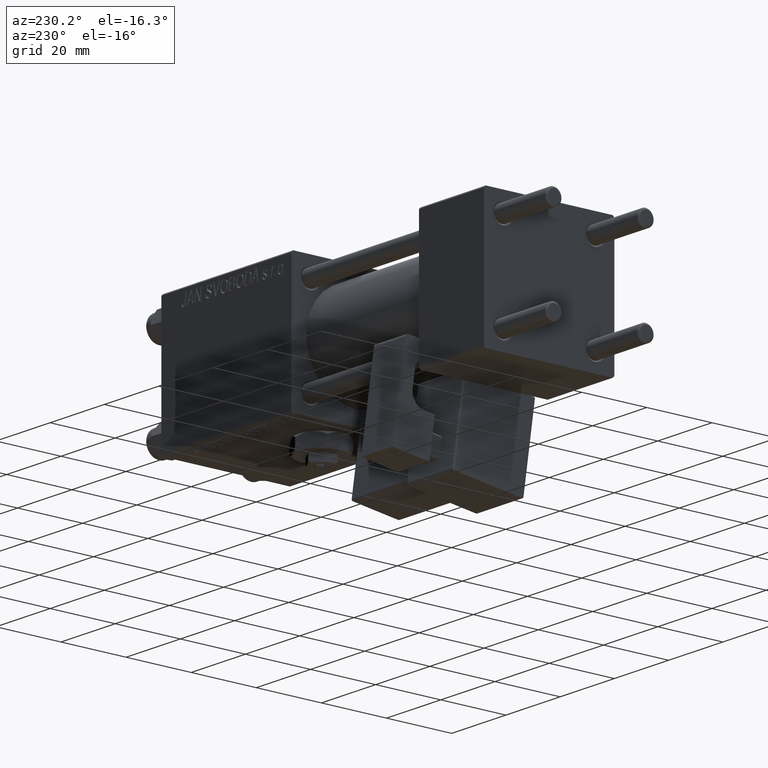
[diagram: clean part render]
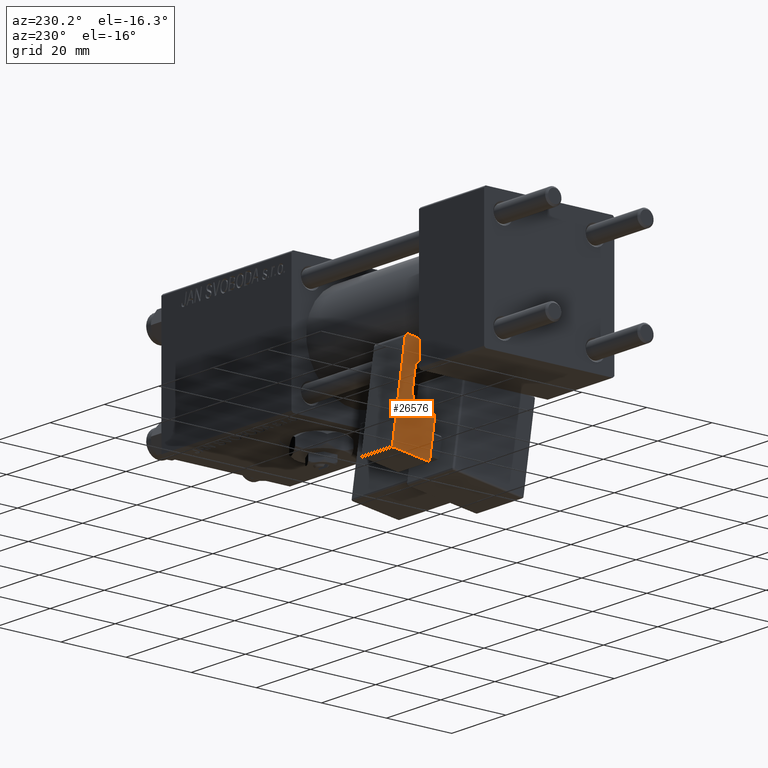
[diagram: same view with one face highlighted and labeled with its STEP entity id]
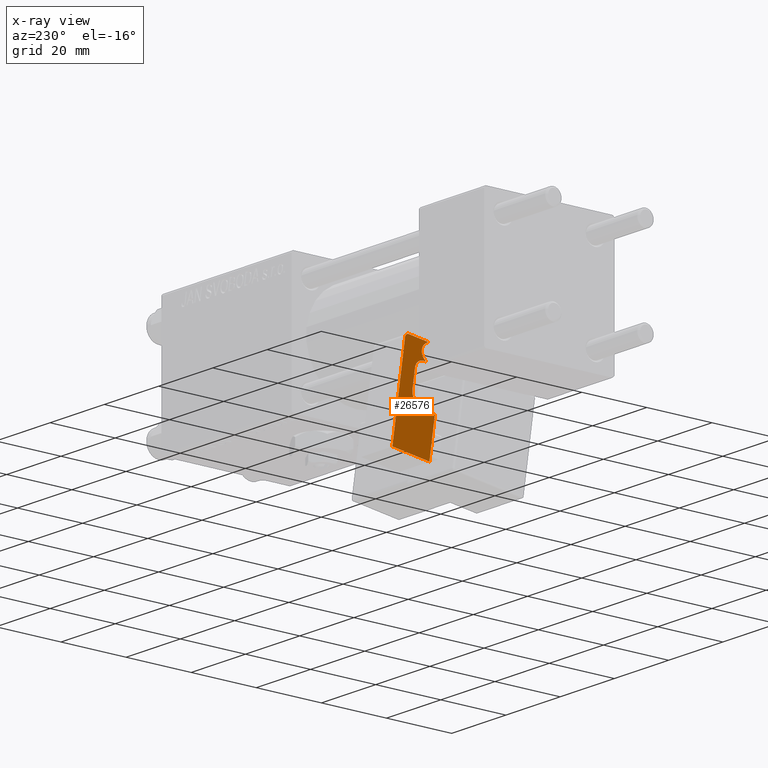
[diagram: x-ray of the same camera — body ghosted, the highlighted face saturated]
A machine part, auxiliary view. The second image highlights one B-rep face of the part: STEP entity #26576.
The next image is the same camera in x-ray: the body ghosted, the highlighted face saturated — about 0% of this face is hidden behind the body in this view.
In plain terms, the highlighted planar face has unit normal (1, 0, 0).
Its self-contained STEP definition (entity closure, byte-faithful):
#416 = AXIS2_PLACEMENT_3D ( 'NONE', #52054, #10912, #47972 ) ;
#485 = CARTESIAN_POINT ( 'NONE',  ( -5.750000000000000000, 5.750000000000000000, 0.000000000000000000 ) ) ;
#538 = DIRECTION ( 'NONE',  ( 0.000000000000000000, -0.7682212795973755171, -0.6401843996644802637 ) ) ;
#816 = CARTESIAN_POINT ( 'NONE',  ( -5.750000000000000000, -0.5546638387921229985, 24.57944680100656498 ) ) ;
#907 = DIRECTION ( 'NONE',  ( 0.000000000000000000, 0.7682212795973759611, -0.6401843996644797086 ) ) ;
#1765 = ORIENTED_EDGE ( 'NONE', *, *, #21346, .F. ) ;
#1912 = VECTOR ( 'NONE', #53535, 1000.000000000000000 ) ;
#3450 = CARTESIAN_POINT ( 'NONE',  ( -5.750000000000000000, 1.749999999999997558, 16.00000000000000000 ) ) ;
#3530 = EDGE_CURVE ( 'NONE', #12095, #28401, #42075, .T. ) ;
#3967 = EDGE_CURVE ( 'NONE', #12803, #25507, #29194, .T. ) ;
#5145 = VERTEX_POINT ( 'NONE', #24770 ) ;
#5383 = CARTESIAN_POINT ( 'NONE',  ( -5.750000000000000000, -1.249999999999999334, 29.00000000000000000 ) ) ;
#5493 = VECTOR ( 'NONE', #907, 1000.000000000000114 ) ;
#5646 = CIRCLE ( 'NONE', #43057, 2.500000000000000000 ) ;
#6008 = LINE ( 'NONE', #14704, #34810 ) ;
#7266 = FACE_OUTER_BOUND ( 'NONE', #24131, .T. ) ;
#7462 = CARTESIAN_POINT ( 'NONE',  ( -5.749999999999998224, -2.155124837953325212, 26.50000000000000355 ) ) ;
#8043 = LINE ( 'NONE', #28467, #1912 ) ;
#8240 = DIRECTION ( 'NONE',  ( 1.508455196501571429E-16, -1.000000000000000000, 0.000000000000000000 ) ) ;
#8507 = DIRECTION ( 'NONE',  ( 0.000000000000000000, -1.000000000000000000, 0.000000000000000000 ) ) ;
#9253 = CARTESIAN_POINT ( 'NONE',  ( -5.750000000000000000, 5.750000000000000000, 0.000000000000000000 ) ) ;
#9513 = LINE ( 'NONE', #22029, #46476 ) ;
#9990 = ORIENTED_EDGE ( 'NONE', *, *, #19149, .T. ) ;
#10839 = VERTEX_POINT ( 'NONE', #47601 ) ;
#10912 = DIRECTION ( 'NONE',  ( 1.000000000000000000, 1.508455196501571183E-16, -0.000000000000000000 ) ) ;
#11359 = ORIENTED_EDGE ( 'NONE', *, *, #33690, .F. ) ;
#11362 = VECTOR ( 'NONE', #8507, 1000.000000000000000 ) ;
#12053 = LINE ( 'NONE', #9253, #18395 ) ;
#12095 = VERTEX_POINT ( 'NONE', #41762 ) ;
#12803 = VERTEX_POINT ( 'NONE', #50203 ) ;
#14704 = CARTESIAN_POINT ( 'NONE',  ( -5.750000000000000000, 5.750000000000000000, 12.00000000000000000 ) ) ;
#15960 = DIRECTION ( 'NONE',  ( 1.000000000000000000, 1.508455196501571183E-16, -0.000000000000000000 ) ) ;
#15991 = EDGE_CURVE ( 'NONE', #12095, #28584, #46500, .T. ) ;
#16819 = LINE ( 'NONE', #33457, #33588 ) ;
#17014 = DIRECTION ( 'NONE',  ( 0.000000000000000000, -3.071906155375595568E-16, -1.000000000000000000 ) ) ;
#17252 = LINE ( 'NONE', #49965, #5493 ) ;
#17626 = ORIENTED_EDGE ( 'NONE', *, *, #3530, .F. ) ;
#18164 = VERTEX_POINT ( 'NONE', #51433 ) ;
#18395 = VECTOR ( 'NONE', #8240, 1000.000000000000000 ) ;
#19149 = EDGE_CURVE ( 'NONE', #12803, #5145, #35179, .T. ) ;
#19534 = AXIS2_PLACEMENT_3D ( 'NONE', #42712, #46812, #34270 ) ;
#21346 = EDGE_CURVE ( 'NONE', #37724, #28584, #16819, .T. ) ;
#21377 = ORIENTED_EDGE ( 'NONE', *, *, #40226, .F. ) ;
#22029 = CARTESIAN_POINT ( 'NONE',  ( -5.750000000000000000, 5.750000000000000000, 12.00000000000000000 ) ) ;
#22229 = CARTESIAN_POINT ( 'NONE',  ( -5.750000000000000000, -1.249999999999999334, 24.00000000000000000 ) ) ;
#23350 = CARTESIAN_POINT ( 'NONE',  ( -5.749999999999998224, -5.750000000000000000, 12.00000000000000000 ) ) ;
#23874 = PLANE ( 'NONE',  #38118 ) ;
#24131 = EDGE_LOOP ( 'NONE', ( #48990, #9990, #51163, #41399, #11359, #45985, #49496, #17626, #31021, #1765, #44852, #25793, #21377 ) ) ;
#24721 = DIRECTION ( 'NONE',  ( 0.000000000000000000, 1.000000000000000000, 0.000000000000000000 ) ) ;
#24770 = CARTESIAN_POINT ( 'NONE',  ( -5.750000000000000000, 5.750000000000000000, 28.00000000000000000 ) ) ;
#24910 = VERTEX_POINT ( 'NONE', #816 ) ;
#25507 = VERTEX_POINT ( 'NONE', #5383 ) ;
#25793 = ORIENTED_EDGE ( 'NONE', *, *, #43757, .T. ) ;
#26576 = ADVANCED_FACE ( 'NONE', ( #7266 ), #23874, .F. ) ;
#28401 = VERTEX_POINT ( 'NONE', #3450 ) ;
#28467 = CARTESIAN_POINT ( 'NONE',  ( -5.749999999999998224, -5.750000000000000000, 12.00000000000000000 ) ) ;
#28584 = VERTEX_POINT ( 'NONE', #35017 ) ;
#28639 = VECTOR ( 'NONE', #17014, 1000.000000000000000 ) ;
#29194 = LINE ( 'NONE', #45815, #11362 ) ;
#29408 = CARTESIAN_POINT ( 'NONE',  ( -5.750000000000000000, 1.749999999999999778, 26.50000000000000355 ) ) ;
#30018 = EDGE_CURVE ( 'NONE', #32631, #30402, #6008, .T. ) ;
#30402 = VERTEX_POINT ( 'NONE', #23350 ) ;
#31021 = ORIENTED_EDGE ( 'NONE', *, *, #15991, .T. ) ;
#31569 = CARTESIAN_POINT ( 'NONE',  ( -5.749999999999999112, -2.250000000000003553, 12.00000000000000000 ) ) ;
#32552 = EDGE_CURVE ( 'NONE', #46142, #18164, #12053, .T. ) ;
#32631 = VERTEX_POINT ( 'NONE', #31569 ) ;
#33457 = CARTESIAN_POINT ( 'NONE',  ( -5.750000000000000000, -1.249999999999999334, 24.00000000000000000 ) ) ;
#33588 = VECTOR ( 'NONE', #24721, 1000.000000000000000 ) ;
#33690 = EDGE_CURVE ( 'NONE', #30402, #18164, #8043, .T. ) ;
#34124 = DIRECTION ( 'NONE',  ( 1.000000000000000000, 1.508455196501571183E-16, -0.000000000000000000 ) ) ;
#34270 = DIRECTION ( 'NONE',  ( 0.000000000000000000, 1.000000000000000000, 0.000000000000000000 ) ) ;
#34669 = CARTESIAN_POINT ( 'NONE',  ( -5.749999999999999112, -2.250000000000002665, 16.00000000000000000 ) ) ;
#34810 = VECTOR ( 'NONE', #42779, 1000.000000000000000 ) ;
#35017 = CARTESIAN_POINT ( 'NONE',  ( -5.750000000000000000, -0.7500000000000007772, 24.00000000000000000 ) ) ;
#35179 = CIRCLE ( 'NONE', #19534, 1.000000000000000000 ) ;
#36194 = AXIS2_PLACEMENT_3D ( 'NONE', #34669, #34124, #42563 ) ;
#36594 = DIRECTION ( 'NONE',  ( 0.000000000000000000, 1.000000000000000000, 0.000000000000000000 ) ) ;
#37712 = CARTESIAN_POINT ( 'NONE',  ( -5.750000000000000000, 1.750000000000000000, 24.00000000000000000 ) ) ;
#37724 = VERTEX_POINT ( 'NONE', #22229 ) ;
#38118 = AXIS2_PLACEMENT_3D ( 'NONE', #53287, #15960, #40491 ) ;
#38567 = EDGE_CURVE ( 'NONE', #24910, #37724, #41128, .T. ) ;
#38647 = DIRECTION ( 'NONE',  ( -0.000000000000000000, -0.000000000000000000, -1.000000000000000000 ) ) ;
#38798 = CIRCLE ( 'NONE', #36194, 4.000000000000000000 ) ;
#40226 = EDGE_CURVE ( 'NONE', #25507, #10839, #17252, .T. ) ;
#40491 = DIRECTION ( 'NONE',  ( -1.508455196501571183E-16, 1.000000000000000000, 0.000000000000000000 ) ) ;
#41128 = LINE ( 'NONE', #29408, #50679 ) ;
#41399 = ORIENTED_EDGE ( 'NONE', *, *, #32552, .T. ) ;
#41762 = CARTESIAN_POINT ( 'NONE',  ( -5.750000000000000000, 1.749999999999999112, 21.50000000000000000 ) ) ;
#42075 = LINE ( 'NONE', #37712, #28639 ) ;
#42512 = EDGE_CURVE ( 'NONE', #5145, #46142, #9513, .T. ) ;
#42563 = DIRECTION ( 'NONE',  ( -2.168404344971008868E-16, 1.000000000000000000, 0.000000000000000000 ) ) ;
#42712 = CARTESIAN_POINT ( 'NONE',  ( -5.750000000000000000, 4.750000000000000000, 28.00000000000000000 ) ) ;
#42779 = DIRECTION ( 'NONE',  ( 1.508455196501571429E-16, -1.000000000000000000, 0.000000000000000000 ) ) ;
#43057 = AXIS2_PLACEMENT_3D ( 'NONE', #7462, #52701, #36594 ) ;
#43757 = EDGE_CURVE ( 'NONE', #24910, #10839, #5646, .T. ) ;
#44852 = ORIENTED_EDGE ( 'NONE', *, *, #38567, .F. ) ;
#45815 = CARTESIAN_POINT ( 'NONE',  ( -5.750000000000000000, 5.750000000000000000, 29.00000000000000000 ) ) ;
#45985 = ORIENTED_EDGE ( 'NONE', *, *, #30018, .F. ) ;
#46142 = VERTEX_POINT ( 'NONE', #485 ) ;
#46476 = VECTOR ( 'NONE', #38647, 1000.000000000000000 ) ;
#46500 = CIRCLE ( 'NONE', #416, 2.500000000000000000 ) ;
#46812 = DIRECTION ( 'NONE',  ( -1.000000000000000000, -1.508455196501571183E-16, 0.000000000000000000 ) ) ;
#46877 = EDGE_CURVE ( 'NONE', #32631, #28401, #38798, .T. ) ;
#47601 = CARTESIAN_POINT ( 'NONE',  ( -5.750000000000000000, -0.5546638387921266622, 28.42055319899344212 ) ) ;
#47972 = DIRECTION ( 'NONE',  ( 0.000000000000000000, 1.000000000000000000, 0.000000000000000000 ) ) ;
#48990 = ORIENTED_EDGE ( 'NONE', *, *, #3967, .F. ) ;
#49496 = ORIENTED_EDGE ( 'NONE', *, *, #46877, .T. ) ;
#49965 = CARTESIAN_POINT ( 'NONE',  ( -5.750000000000000000, -1.249999999999999334, 29.00000000000000000 ) ) ;
#50203 = CARTESIAN_POINT ( 'NONE',  ( -5.750000000000000000, 4.750000000000000888, 29.00000000000000000 ) ) ;
#50679 = VECTOR ( 'NONE', #538, 1000.000000000000114 ) ;
#51163 = ORIENTED_EDGE ( 'NONE', *, *, #42512, .T. ) ;
#51433 = CARTESIAN_POINT ( 'NONE',  ( -5.749999999999998224, -5.750000000000000000, 0.000000000000000000 ) ) ;
#52054 = CARTESIAN_POINT ( 'NONE',  ( -5.749999999999998224, -0.7500000000000007772, 21.50000000000000000 ) ) ;
#52701 = DIRECTION ( 'NONE',  ( 1.000000000000000000, 1.508455196501571183E-16, -0.000000000000000000 ) ) ;
#53287 = CARTESIAN_POINT ( 'NONE',  ( -5.750000000000000000, 5.750000000000000000, 12.00000000000000000 ) ) ;
#53535 = DIRECTION ( 'NONE',  ( -0.000000000000000000, -0.000000000000000000, -1.000000000000000000 ) ) ;